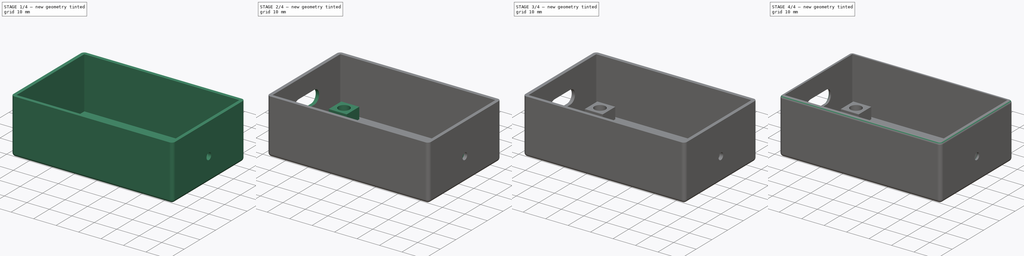
[diagram: build sequence overview — one tinted view per stage of 4, left to right]
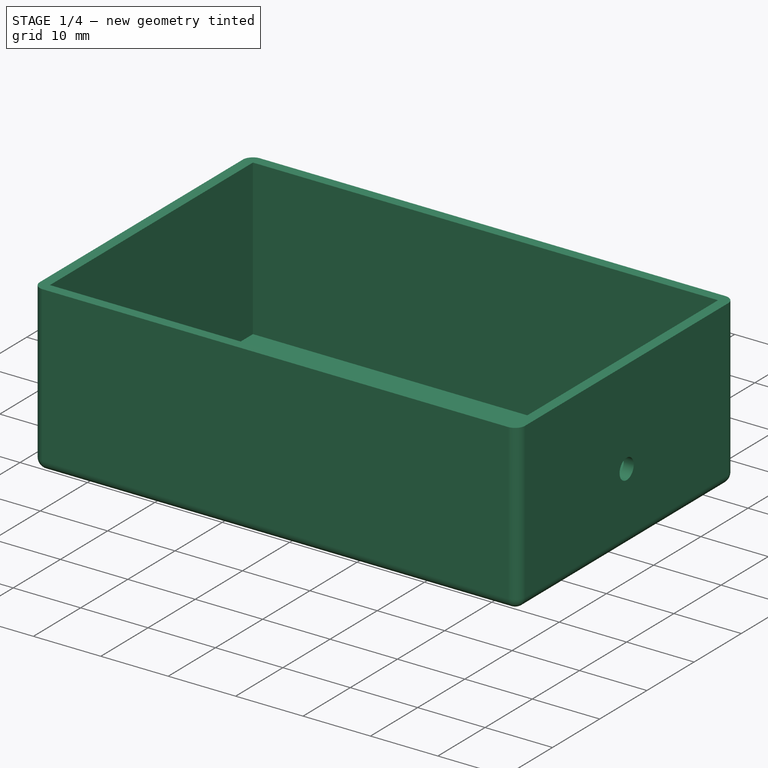
[diagram: stage 1 of 4 — iso view after this stage's code; geometry added in this stage tinted green]
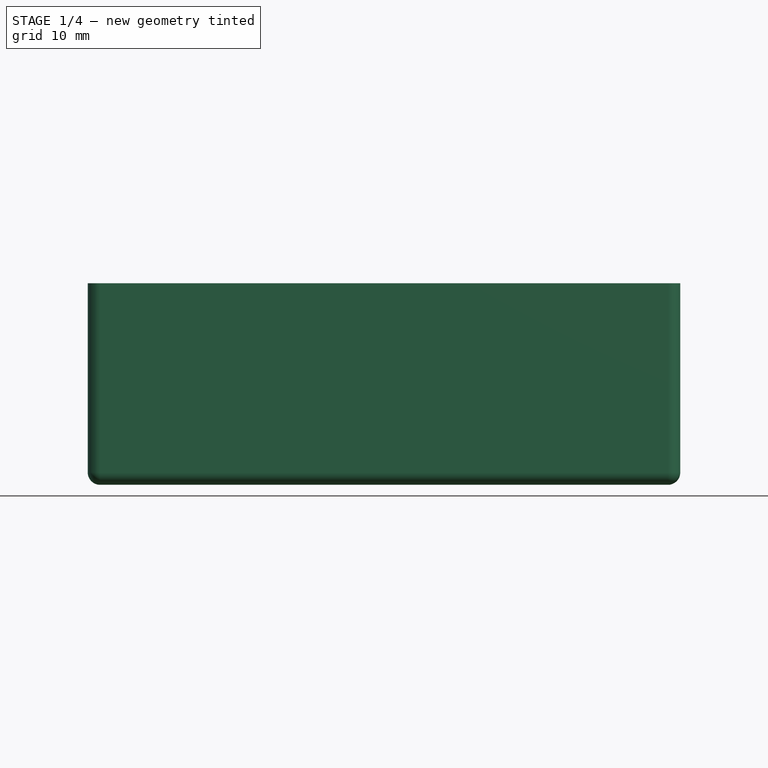
[diagram: stage 1 of 4 — front view after this stage's code; geometry added in this stage tinted green]
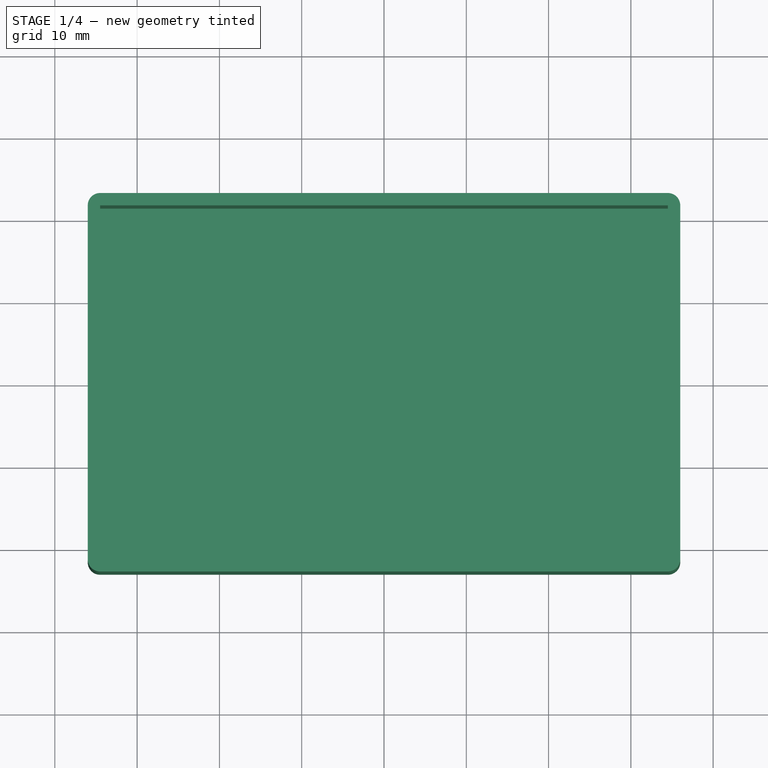
[diagram: stage 1 of 4 — top view after this stage's code; geometry added in this stage tinted green]
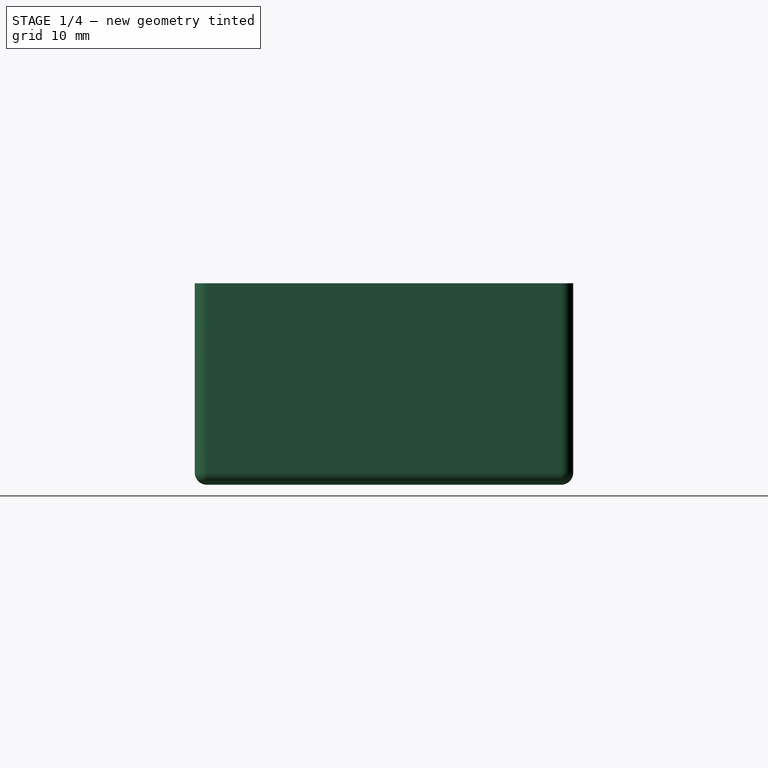
[diagram: stage 1 of 4 — right view after this stage's code; geometry added in this stage tinted green]
FCSTD DOCUMENT  (FreeCAD 0.19R23141 (Git))
Label: Case Bottom Backup
License: All rights reserved
LicenseURL: http://en.wikipedia.org/wiki/All_rights_reserved
objects: Sketcher::SketchObject×9, PartDesign::Pocket×6, PartDesign::Pad×2, PartDesign::Fillet×2, PartDesign::Thickness×1, PartDesign::Hole×1, PartDesign::Body×1
note: 34 computed .brp shape members not serialized (recipe doc carries the construction recipe); baked Part::Feature solids carry a one-line shape summary decoded from their .brp

FEATURE [Sketcher::SketchObject] Sketch  label="Main Body"
  MapMode = 5
  Support = -> [XY_Plane]
  sketch-geometry (4):
    g0: LineSegment StartX=-34.5 StartY=21.5 StartZ=0 EndX=34.5 EndY=21.5 EndZ=0
    g1: LineSegment StartX=34.5 StartY=21.5 StartZ=0 EndX=34.5 EndY=-21.5 EndZ=0
    g2: LineSegment StartX=34.5 StartY=-21.5 StartZ=0 EndX=-34.5 EndY=-21.5 EndZ=0
    g3: LineSegment StartX=-34.5 StartY=-21.5 StartZ=0 EndX=-34.5 EndY=21.5 EndZ=0
  constraints (10):
    c: Coincident(g0,g1)
    c: Coincident(g1,g2)
    c: Coincident(g2,g3)
    c: Coincident(g3,g0)
    c: Horizontal(g2)
    c: Vertical(g3)
    c: DistanceX(g0,g0) = 69
    c: DistanceY(g1,g1) = 43
    c: Symmetric(g0,g1,g-1)
    c: Symmetric(g0,g0,g-2)
FEATURE [PartDesign::Pad] Pad
  AllowMultiFace = false
  Direction = (1,1,1)
  Length = 23
  Length2 = 100
  Profile = -> Sketch
  Type = 0
FEATURE [PartDesign::Thickness] Thickness  label="Bottom?"
  Base = -> Pad [Face6]
  BaseFeature = -> Pad
  Intersection = false
  Join = 0
  Mode = 0
  SupportTransform = false
  Value = 1.5
FEATURE [Sketcher::SketchObject] Sketch001  label="Round Hole"
  ExternalGeometry = -> [Thickness]
  MapMode = 5
  Placement = pos=(36,0,0) rot=(0.57735,0.57735,0.57735;2.0944rad)
  Support = -> [Thickness]
  sketch-geometry (1):
    g0: Circle CenterX=-2e-16 CenterY=9 CenterZ=0 NormalX=0 NormalY=0 NormalZ=1 AngleXU=0 Radius=2.5
  constraints (3):
    c: Diameter(g0) = 5
    c: DistanceX(g-3,g0) = 23
    c: DistanceY(g-1,g0) = 9
FEATURE [PartDesign::Hole] Hole
  AllowMultiFace = false
  BaseFeature = -> Thickness
  Depth = 3
  DepthType = 0
  Diameter = 3
  DrillPoint = 1
  DrillPointAngle = 118
  HoleCutCountersinkAngle = 90
  HoleCutDepth = 0
  HoleCutDiameter = 0
  HoleCutType = 0
  ModelActualThread = false
  Profile = -> Sketch001
  Tapered = false
  TaperedAngle = 90
  ThreadAngle = 0
  ThreadClass = 0
  ThreadCutOffInner = 0
  ThreadCutOffOuter = 0
  ThreadDirection = 0
  ThreadFit = 0
  ThreadPitch = 0
  ThreadSize = 0
  ThreadType = 0
  Threaded = false
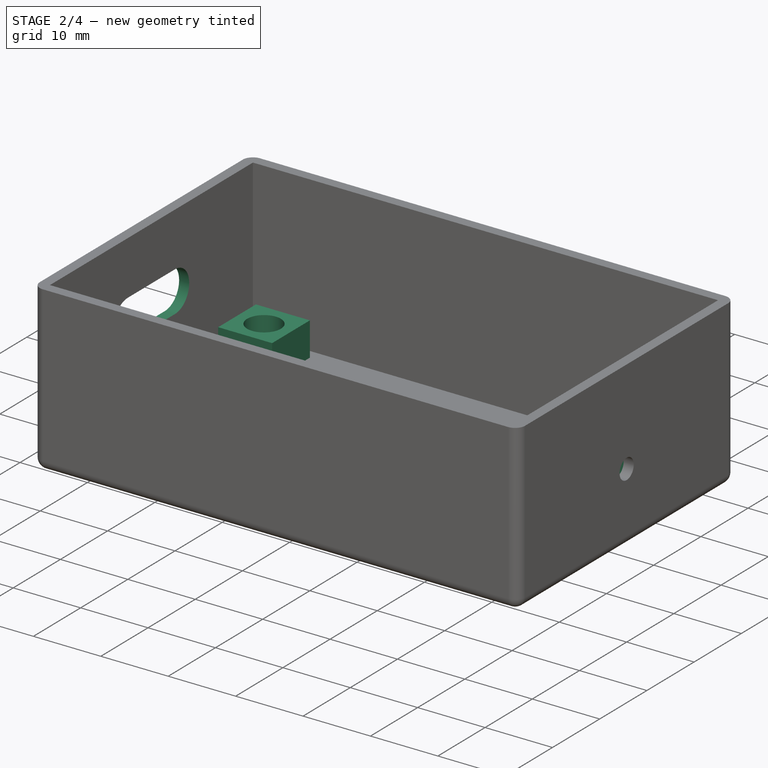
[diagram: stage 2 of 4 — iso view after this stage's code; geometry added in this stage tinted green]
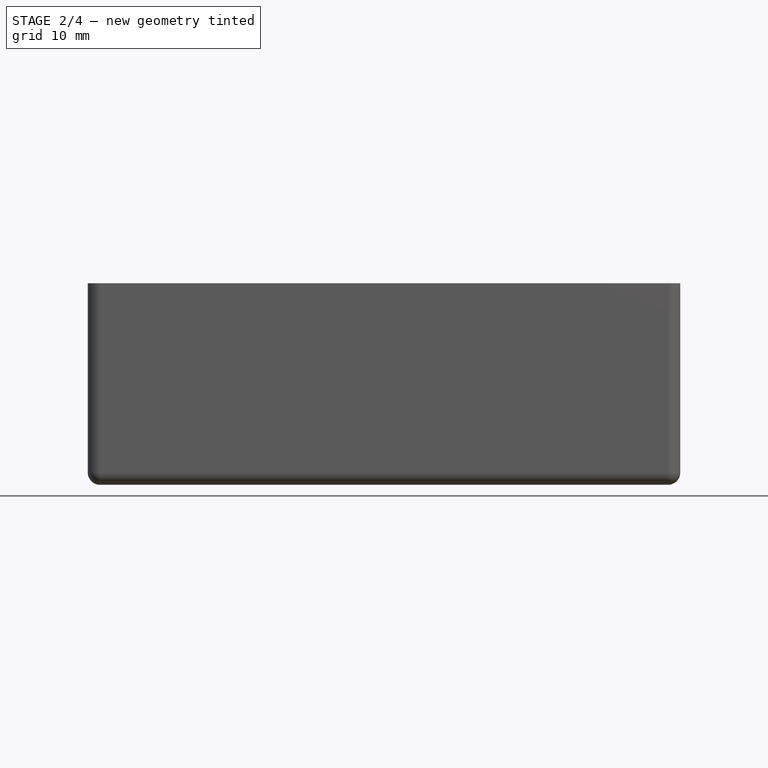
[diagram: stage 2 of 4 — front view after this stage's code; geometry added in this stage tinted green]
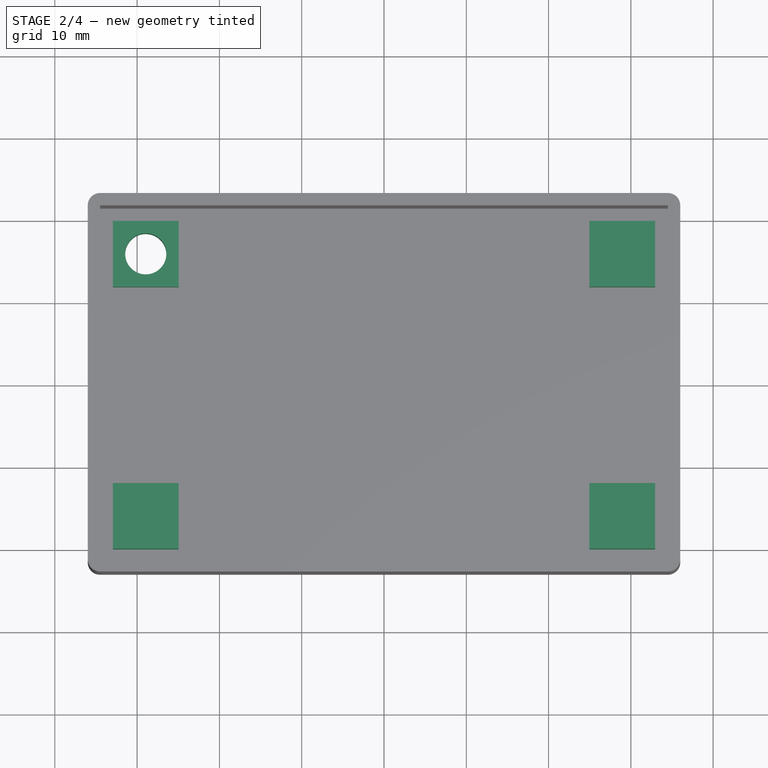
[diagram: stage 2 of 4 — top view after this stage's code; geometry added in this stage tinted green]
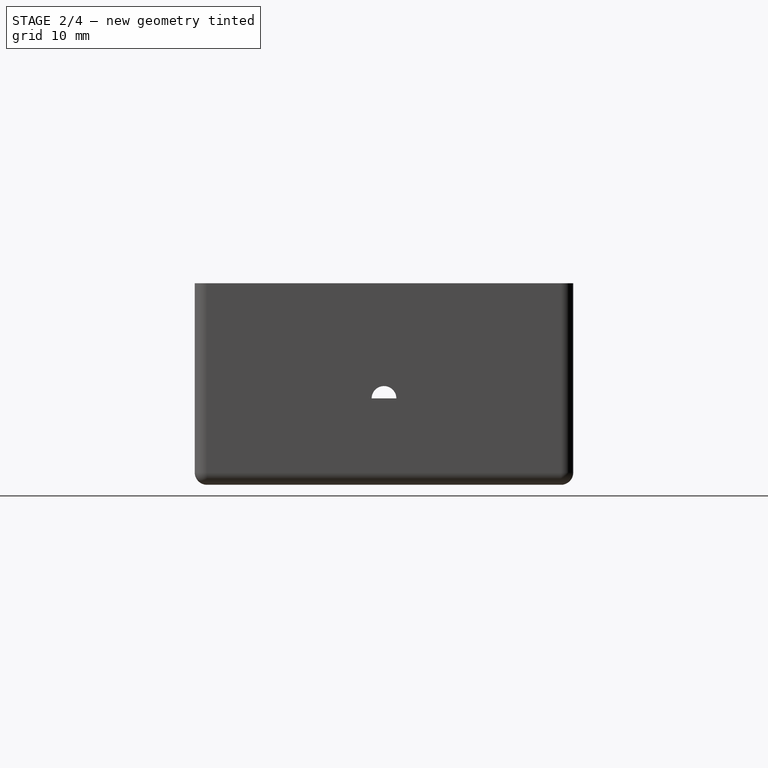
[diagram: stage 2 of 4 — right view after this stage's code; geometry added in this stage tinted green]
FEATURE [Sketcher::SketchObject] Sketch002  label="Oval Hole"
  ExternalGeometry = -> [Hole]
  MapMode = 5
  Placement = pos=(-36,0,0) rot=(0.57735,-0.57735,-0.57735;2.0944rad)
  Support = -> [Hole]
  sketch-geometry (4):
    g0: ArcOfCircle CenterX=-5 CenterY=12 CenterZ=0 NormalX=0 NormalY=0 NormalZ=1 AngleXU=0 Radius=3 StartAngle=1.5708 EndAngle=4.71239
    g1: ArcOfCircle CenterX=5 CenterY=12 CenterZ=0 NormalX=0 NormalY=0 NormalZ=1 AngleXU=0 Radius=3 StartAngle=4.71239 EndAngle=7.85398
    g2: LineSegment StartX=-5 StartY=9 StartZ=0 EndX=5 EndY=9 EndZ=0
    g3: LineSegment StartX=-5 StartY=15 StartZ=0 EndX=5 EndY=15 EndZ=0
  constraints (11):
    c: Tangent(g0,g3)
    c: Tangent(g0,g2)
    c: Tangent(g2,g1)
    c: Tangent(g3,g1)
    c: Horizontal(g2)
    c: Equal(g0,g1)
    c: DistanceX(g0,g1) = 10
    c: DistanceY(g1,g1) = 6
    c: DistanceX(g-3,g0) = 18
    c: DistanceX(g-3,g-4) = 46
    c: DistanceY(g-3,g0) = 9
FEATURE [PartDesign::Pocket] Pocket  label="Oval Pocket"
  AllowMultiFace = false
  BaseFeature = -> Hole
  Length = 5
  Length2 = 100
  Profile = -> Sketch002
  Type = 0
FEATURE [Sketcher::SketchObject] Sketch003  label="Stand Offs (4)"
  ExternalGeometry = -> [Pocket]
  MapMode = 5
  Support = -> [Pocket]
  sketch-geometry (16):
    g0: LineSegment StartX=-32.95 StartY=19.925 StartZ=0 EndX=-24.95 EndY=19.925 EndZ=0
    g1: LineSegment StartX=-24.95 StartY=19.925 StartZ=0 EndX=-24.95 EndY=11.925 EndZ=0
    g2: LineSegment StartX=-24.95 StartY=11.925 StartZ=0 EndX=-32.95 EndY=11.925 EndZ=0
    g3: LineSegment StartX=-32.95 StartY=11.925 StartZ=0 EndX=-32.95 EndY=19.925 EndZ=0
    g4: LineSegment StartX=24.95 StartY=19.925 StartZ=0 EndX=32.95 EndY=19.925 EndZ=0
    g5: LineSegment StartX=32.95 StartY=19.925 StartZ=0 EndX=32.95 EndY=11.925 EndZ=0
    g6: LineSegment StartX=32.95 StartY=11.925 StartZ=0 EndX=24.95 EndY=11.925 EndZ=0
    g7: LineSegment StartX=24.95 StartY=11.925 StartZ=0 EndX=24.95 EndY=19.925 EndZ=0
    g8: LineSegment StartX=-32.95 StartY=-11.925 StartZ=0 EndX=-24.95 EndY=-11.925 EndZ=0
    g9: LineSegment StartX=-24.95 StartY=-11.925 StartZ=0 EndX=-24.95 EndY=-19.925 EndZ=0
    g10: LineSegment StartX=-24.95 StartY=-19.925 StartZ=0 EndX=-32.95 EndY=-19.925 EndZ=0
    g11: LineSegment StartX=-32.95 StartY=-19.925 StartZ=0 EndX=-32.95 EndY=-11.925 EndZ=0
    g12: LineSegment StartX=24.95 StartY=-11.925 StartZ=0 EndX=32.95 EndY=-11.925 EndZ=0
    g13: LineSegment StartX=32.95 StartY=-11.925 StartZ=0 EndX=32.95 EndY=-19.925 EndZ=0
    g14: LineSegment StartX=32.95 StartY=-19.925 StartZ=0 EndX=24.95 EndY=-19.925 EndZ=0
    g15: LineSegment StartX=24.95 StartY=-19.925 StartZ=0 EndX=24.95 EndY=-11.925 EndZ=0
  constraints (56):
    c: Coincident(g0,g1)
    c: Coincident(g1,g2)
    c: Coincident(g2,g3)
    c: Coincident(g3,g0)
    c: Horizontal(g0)
    c: Horizontal(g2)
    c: Vertical(g1)
    c: Vertical(g3)
    c: DistanceY(g1,g0) = 8
    c: DistanceX(g2,g2) = 8
    c: Coincident(g4,g5)
    c: Coincident(g5,g6)
    c: Coincident(g6,g7)
    c: Coincident(g7,g4)
    c: Horizontal(g4)
    c: Horizontal(g6)
    c: Vertical(g5)
    c: Vertical(g7)
    c: DistanceY(g5,g4) = 8
    c: Equal(g2,g6) = 7.5
    c: Coincident(g8,g9)
    c: Coincident(g9,g10)
    c: Coincident(g10,g11)
    c: Coincident(g11,g8)
    c: Horizontal(g8)
    c: Horizontal(g10)
    c: Vertical(g9)
    c: Vertical(g11)
    c: DistanceY(g9,g8) = 8
    c: Equal(g2,g10) = 7.5
    c: Coincident(g12,g13)
    c: Coincident(g13,g14)
    c: Coincident(g14,g15)
    c: Coincident(g15,g12)
    c: Horizontal(g12)
    c: Horizontal(g14)
    c: Vertical(g13)
    c: Vertical(g15)
    c: DistanceY(g13,g12) = 8
    c: Equal(g2,g14) = 7.5
    c: DistanceX(g0,g4) = 57.9
    c: DistanceY(g10,g2) = 31.85
    c: DistanceY(g13,g5) = 31.85
    c: DistanceX(g8,g12) = 57.9
    c: DistanceX(g-5) = 36
    c: DistanceX(g-4,g10) = 3.05
    c: DistanceY(g-6,g13) = 3.075
    c: DistanceY(g0,g-3) = 3.075
    c: DistanceX(g-4,g0) = 3.05
    c: DistanceX(g-5) = 36
    c: DistanceX(g-4,g-3) = 1.5
    c: DistanceX(g-4,g-3) = 1.5
    c: DistanceX(g-4,g-3) = 1.5
    c: DistanceX(g-4,g-6) = 1.5
    c: DistanceY(g-4,g-4) = 43
    c: DistanceX(g-6,g-6) = 69
FEATURE [PartDesign::Pad] Pad001  label="Standoff Pad"
  AllowMultiFace = false
  BaseFeature = -> Pocket
  Direction = (1,1,1)
  Length = 5
  Length2 = 100
  Profile = -> Sketch003
  Type = 0
FEATURE [Sketcher::SketchObject] Sketch007
  ExternalGeometry = -> [Pad001]
  MapMode = 5
  Placement = pos=(0,0,5) rot=(0,0,1;0rad)
  Support = -> [Pad001]
  sketch-geometry (1):
    g0: Circle CenterX=-28.95 CenterY=15.925 CenterZ=0 NormalX=0 NormalY=0 NormalZ=1 AngleXU=0 Radius=2.5
  constraints (3):
    c: Diameter(g0) = 5
    c: DistanceY(g-4,g0) = 4
    c: DistanceX(g-3,g0) = 4
FEATURE [PartDesign::Pocket] Pocket003  label="UL Bolt Hole"
  BaseFeature = -> Pad001
  Length = 7
  Length2 = 100
  Profile = -> Sketch007
  Type = 0
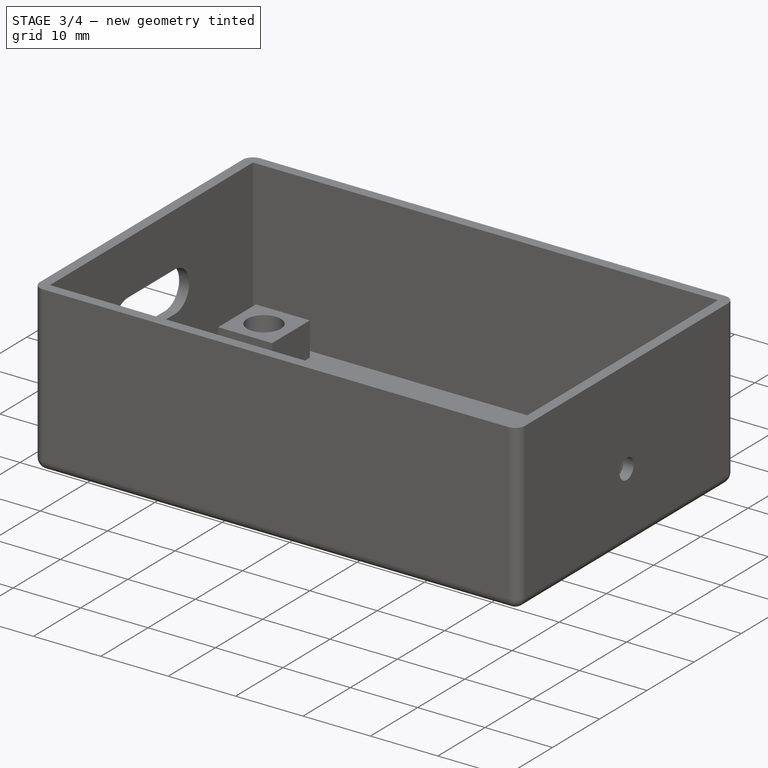
[diagram: stage 3 of 4 — iso view after this stage's code; geometry added in this stage tinted green]
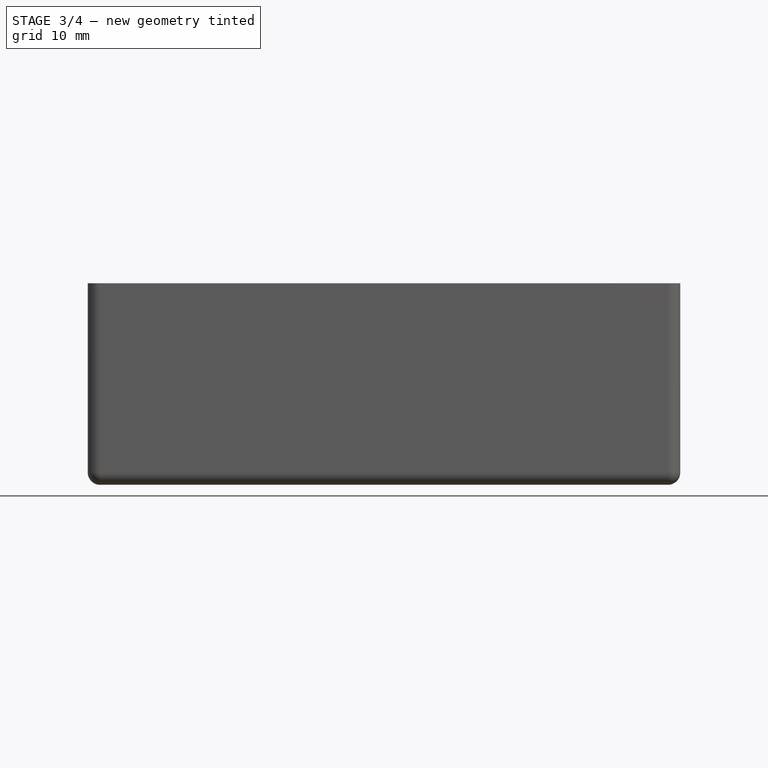
[diagram: stage 3 of 4 — front view after this stage's code; geometry added in this stage tinted green]
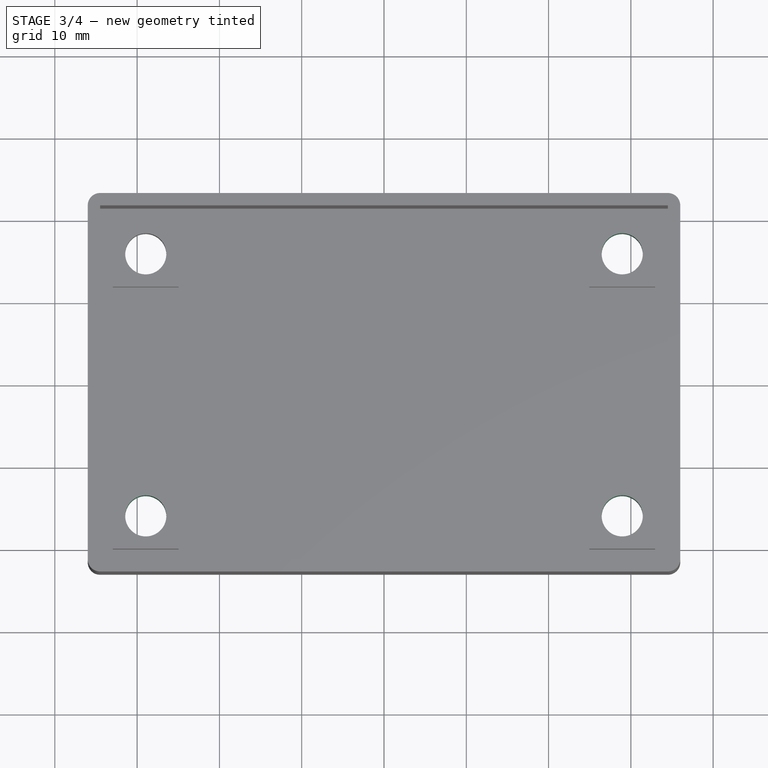
[diagram: stage 3 of 4 — top view after this stage's code; geometry added in this stage tinted green]
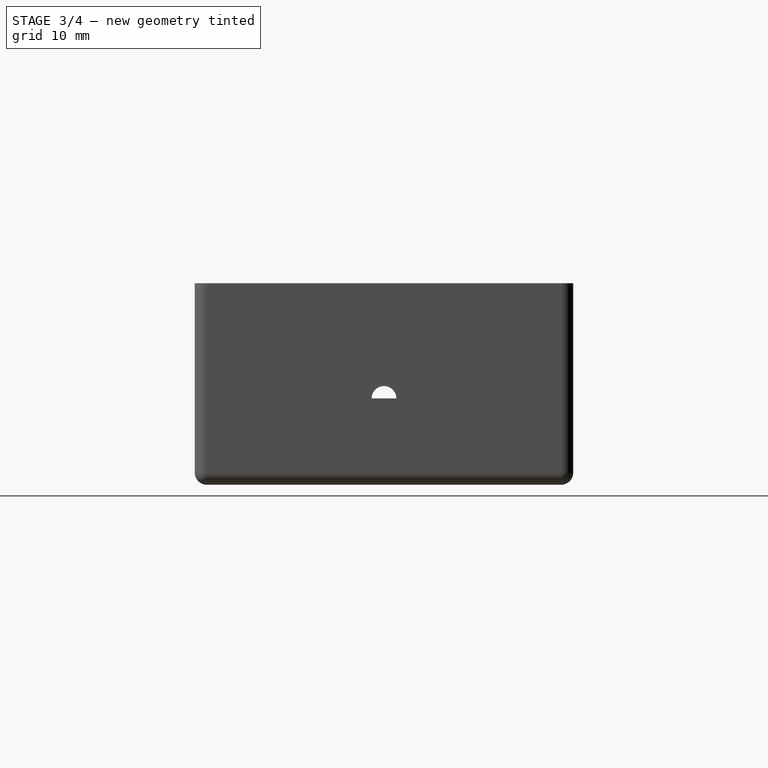
[diagram: stage 3 of 4 — right view after this stage's code; geometry added in this stage tinted green]
FEATURE [Sketcher::SketchObject] Sketch008
  ExternalGeometry = -> [Pocket003]
  MapMode = 5
  Placement = pos=(0,0,5) rot=(0,0,1;0rad)
  Support = -> [Pocket003]
  sketch-geometry (1):
    g0: Circle CenterX=28.95 CenterY=15.925 CenterZ=0 NormalX=0 NormalY=0 NormalZ=1 AngleXU=0 Radius=2.5
  constraints (3):
    c: Diameter(g0) = 5
    c: DistanceX(g0,g-4) = 4
    c: DistanceY(g-4,g0) = 4
FEATURE [PartDesign::Pocket] Pocket004  label="UR Bolt Hole"
  BaseFeature = -> Pocket003
  Length = 7
  Length2 = 100
  Profile = -> Sketch008
  Type = 0
FEATURE [Sketcher::SketchObject] Sketch009
  ExternalGeometry = -> [Pocket004]
  MapMode = 5
  Placement = pos=(0,0,5) rot=(0,0,1;0rad)
  Support = -> [Pocket004]
  sketch-geometry (1):
    g0: Circle CenterX=-28.95 CenterY=-15.925 CenterZ=0 NormalX=0 NormalY=0 NormalZ=1 AngleXU=0 Radius=2.5
  constraints (3):
    c: Diameter(g0) = 5
    c: DistanceX(g0,g-4) = 4
    c: DistanceY(g-3,g0) = 4
FEATURE [PartDesign::Pocket] Pocket005  label="LL Bolt Hole"
  BaseFeature = -> Pocket004
  Length = 7
  Length2 = 100
  Profile = -> Sketch009
  Type = 0
FEATURE [Sketcher::SketchObject] Sketch010
  ExternalGeometry = -> [Pocket005]
  MapMode = 5
  Placement = pos=(0,0,5) rot=(0,0,1;0rad)
  Support = -> [Pocket005]
  sketch-geometry (1):
    g0: Circle CenterX=28.95 CenterY=-15.925 CenterZ=0 NormalX=0 NormalY=0 NormalZ=1 AngleXU=0 Radius=2.5
  constraints (3):
    c: Diameter(g0) = 5
    c: DistanceX(g0,g-3) = 4
    c: DistanceY(g-4,g0) = 4
FEATURE [PartDesign::Pocket] Pocket006  label="LR Bolt Hole"
  BaseFeature = -> Pocket005
  Length = 7
  Length2 = 100
  Profile = -> Sketch010
  Type = 0
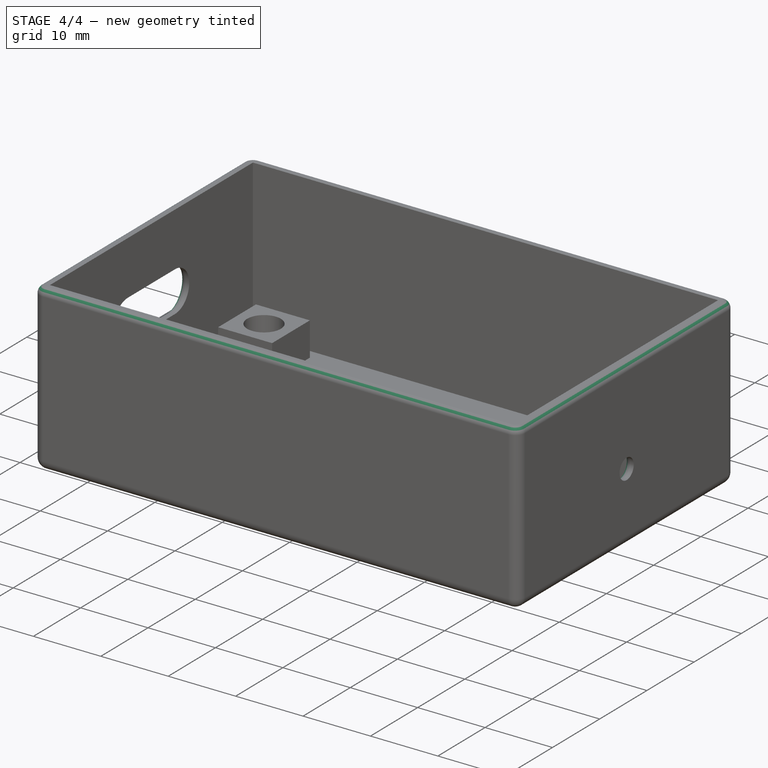
[diagram: stage 4 of 4 — iso view after this stage's code; geometry added in this stage tinted green]
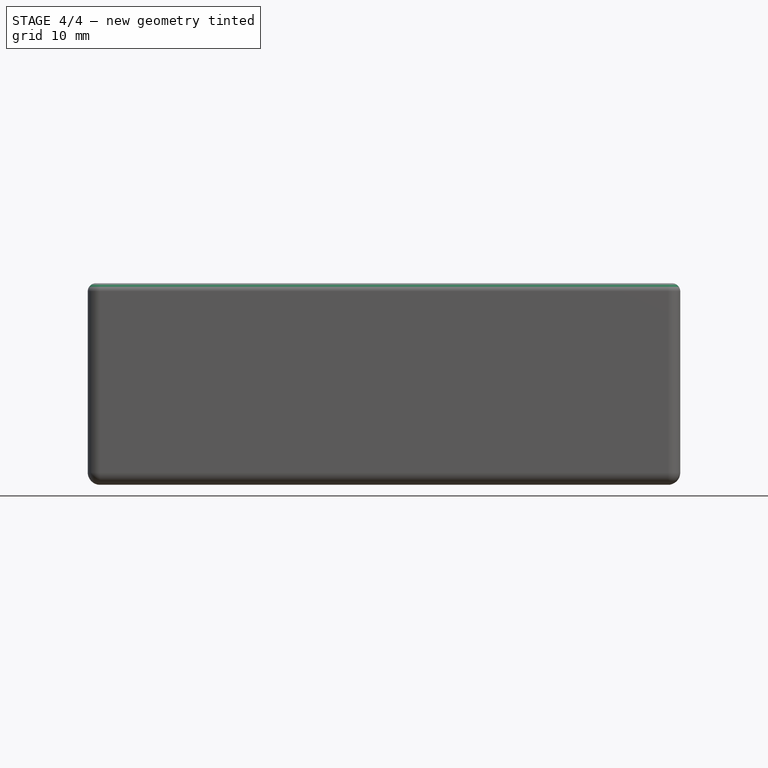
[diagram: stage 4 of 4 — front view after this stage's code; geometry added in this stage tinted green]
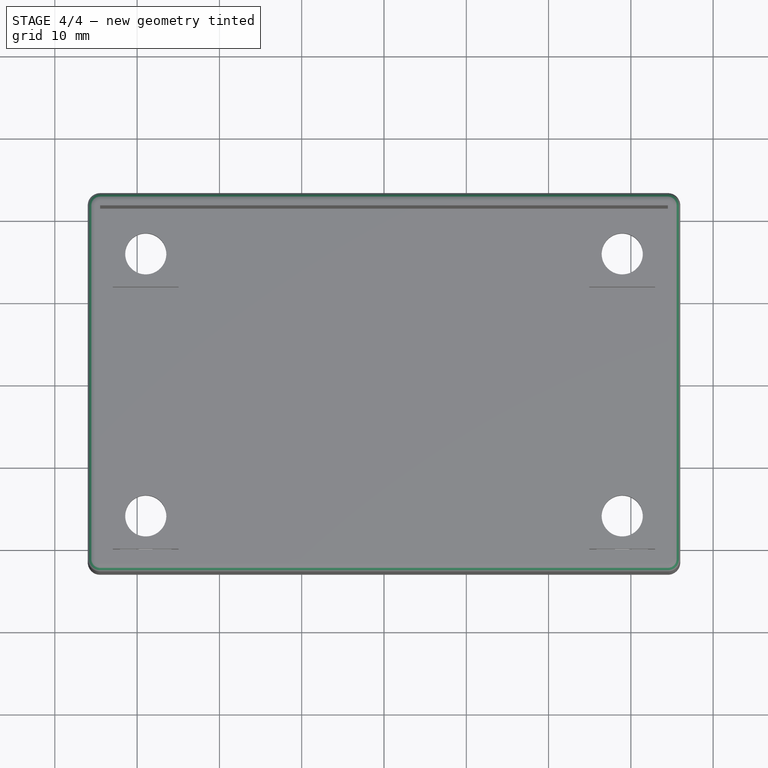
[diagram: stage 4 of 4 — top view after this stage's code; geometry added in this stage tinted green]
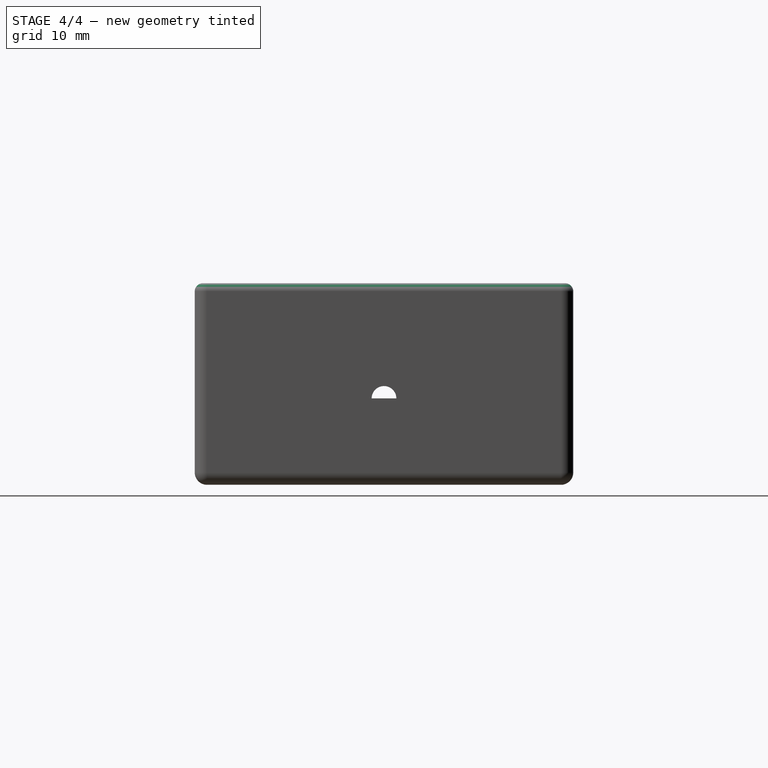
[diagram: stage 4 of 4 — right view after this stage's code; geometry added in this stage tinted green]
FEATURE [Sketcher::SketchObject] Sketch011
  ExternalGeometry = -> [Pocket006]
  MapMode = 5
  Placement = pos=(0,0,-1.5) rot=(1,0,0;3.14159rad)
  Support = -> [Pocket006]
  sketch-geometry (24):
    g0: LineSegment StartX=-25.1458 StartY=17.1611 StartZ=0 EndX=-28.95 EndY=19.925 EndZ=0
    g1: LineSegment StartX=-28.95 StartY=19.925 StartZ=0 EndX=-32.7542 EndY=17.1611 EndZ=0
    g2: LineSegment StartX=-32.7542 StartY=17.1611 StartZ=0 EndX=-31.3011 EndY=12.6889 EndZ=0
    g3: LineSegment StartX=-31.3011 StartY=12.6889 StartZ=0 EndX=-26.5989 EndY=12.6889 EndZ=0
    g4: LineSegment StartX=-26.5989 StartY=12.6889 StartZ=0 EndX=-25.1458 EndY=17.1611 EndZ=0
    g5: Circle [constr] CenterX=-28.95 CenterY=15.925 CenterZ=0 NormalX=0 NormalY=0 NormalZ=1 AngleXU=0 Radius=4
    g6: LineSegment StartX=26.5989 StartY=12.6889 StartZ=0 EndX=31.3011 EndY=12.6889 EndZ=0
    g7: LineSegment StartX=31.3011 StartY=12.6889 StartZ=0 EndX=32.7542 EndY=17.1611 EndZ=0
    g8: LineSegment StartX=32.7542 StartY=17.1611 StartZ=0 EndX=28.95 EndY=19.925 EndZ=0
    g9: LineSegment StartX=28.95 StartY=19.925 StartZ=0 EndX=25.1458 EndY=17.1611 EndZ=0
    g10: LineSegment StartX=25.1458 StartY=17.1611 StartZ=0 EndX=26.5989 EndY=12.6889 EndZ=0
    g11: Circle [constr] CenterX=28.95 CenterY=15.925 CenterZ=0 NormalX=0 NormalY=0 NormalZ=1 AngleXU=0 Radius=4
    g12: LineSegment StartX=-26.5989 StartY=-12.6889 StartZ=0 EndX=-31.3011 EndY=-12.6889 EndZ=0
    g13: LineSegment StartX=-31.3011 StartY=-12.6889 StartZ=0 EndX=-32.7542 EndY=-17.1611 EndZ=0
    g14: LineSegment StartX=-32.7542 StartY=-17.1611 StartZ=0 EndX=-28.95 EndY=-19.925 EndZ=0
    g15: LineSegment StartX=-28.95 StartY=-19.925 StartZ=0 EndX=-25.1458 EndY=-17.1611 EndZ=0
    g16: LineSegment StartX=-25.1458 StartY=-17.1611 StartZ=0 EndX=-26.5989 EndY=-12.6889 EndZ=0
    g17: Circle [constr] CenterX=-28.95 CenterY=-15.925 CenterZ=0 NormalX=0 NormalY=0 NormalZ=1 AngleXU=0 Radius=4
    g18: LineSegment StartX=26.5989 StartY=-12.6889 StartZ=0 EndX=25.1458 EndY=-17.1611 EndZ=0
    g19: LineSegment StartX=25.1458 StartY=-17.1611 StartZ=0 EndX=28.95 EndY=-19.925 EndZ=0
    g20: LineSegment StartX=28.95 StartY=-19.925 StartZ=0 EndX=32.7542 EndY=-17.1611 EndZ=0
    g21: LineSegment StartX=32.7542 StartY=-17.1611 StartZ=0 EndX=31.3011 EndY=-12.6889 EndZ=0
    g22: LineSegment StartX=31.3011 StartY=-12.6889 StartZ=0 EndX=26.5989 EndY=-12.6889 EndZ=0
    g23: Circle [constr] CenterX=28.95 CenterY=-15.925 CenterZ=0 NormalX=0 NormalY=0 NormalZ=1 AngleXU=0 Radius=4
  constraints (56):
    c: Coincident(g0,g1)
    c: Coincident(g1,g2)
    c: Coincident(g2,g3)
    c: Coincident(g3,g4)
    c: Coincident(g4,g0)
    c: Equal(g0, g1-g4) x4
    c: PointOnObject(g0,g5)
    c: PointOnObject(g1,g5)
    c: PointOnObject(g2,g5)
    c: PointOnObject(g3,g5)
    c: PointOnObject(g4,g5)
    c: Diameter(g5) = 8
    c: Coincident(g-4,g5)
    c: Parallel(g-1,g3)
    c: Coincident(g6,g7)
    c: Coincident(g7,g8)
    c: Coincident(g8,g9)
    c: Coincident(g9,g10)
    c: Coincident(g10,g6)
    c: Equal(g6, g7-g10) x4
    c: PointOnObject(g6,g11)
    c: PointOnObject(g7,g11)
    c: PointOnObject(g8,g11)
    c: PointOnObject(g9,g11)
    c: PointOnObject(g10,g11)
    c: Coincident(g11,g-5)
    c: Diameter(g11) = 8
    c: Coincident(g12,g13)
    c: Coincident(g13,g14)
    c: Coincident(g14,g15)
    c: Coincident(g15,g16)
    c: Coincident(g16,g12)
    c: Equal(g12, g13-g16) x4
    c: PointOnObject(g12,g17)
    c: PointOnObject(g13,g17)
    c: PointOnObject(g14,g17)
    c: PointOnObject(g15,g17)
    c: PointOnObject(g16,g17)
    c: Coincident(g17,g-3)
    c: Diameter(g17) = 8
    c: Coincident(g18,g19)
    c: Coincident(g19,g20)
    c: Coincident(g20,g21)
    c: Coincident(g21,g22)
    c: Coincident(g22,g18)
    c: Equal(g18, g19-g22) x4
    c: PointOnObject(g18,g23)
    c: PointOnObject(g19,g23)
    c: PointOnObject(g20,g23)
    c: PointOnObject(g21,g23)
    c: PointOnObject(g22,g23)
    c: Coincident(g23,g-6)
    c: Diameter(g23) = 8
    c: Parallel(g-1,g6)
    c: Parallel(g22,g-1)
    c: Parallel(g-1,g12)
FEATURE [PartDesign::Pocket] Pocket007  label="Nut Holes"
  BaseFeature = -> Pocket006
  Length = 3
  Length2 = 100
  Profile = -> Sketch011
  Type = 0
FEATURE [PartDesign::Fillet] Fillet
  Base = -> Pocket007 [Edge15]
  BaseFeature = -> Pocket007
  Radius = 1
  SupportTransform = false
FEATURE [PartDesign::Fillet] Fillet001
  Base = -> Fillet [Face26]
  BaseFeature = -> Fillet
  Radius = 1
  SupportTransform = false
FEATURE [PartDesign::Body] Body
  Group = -> [Sketch,Pad,Thickness,Sketch001,Hole,Sketch002,Pocket,Sketch003,Pad001,Sketch007,Pocket003,Sketch008,Pocket004,Sketch009,Pocket005,Sketch010,Pocket006,Sketch011,Pocket007,Fillet,Fillet001]
  Origin = -> Origin
  Tip = -> Fillet001
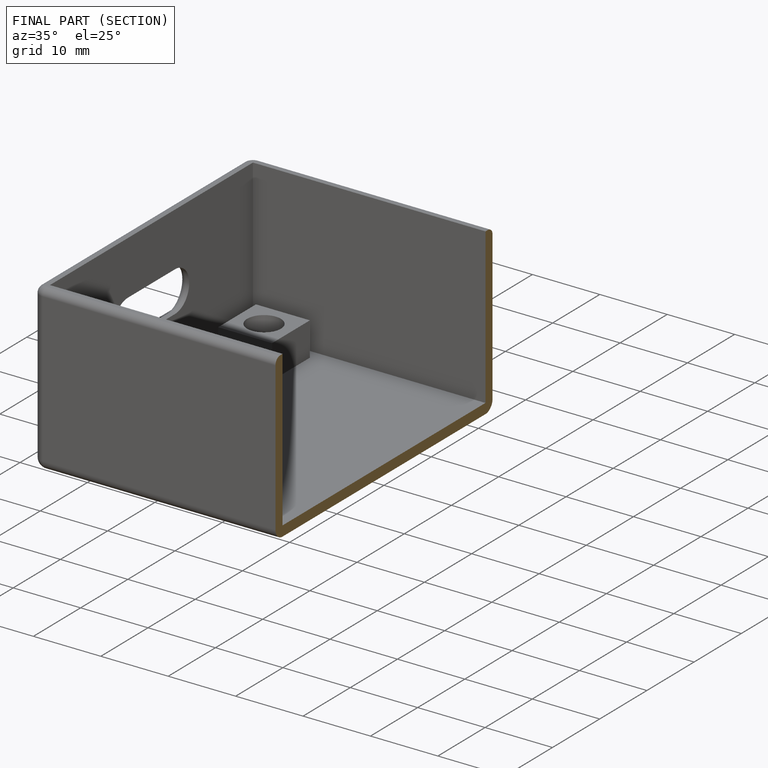
[diagram: finished part — half-section view (interior)]
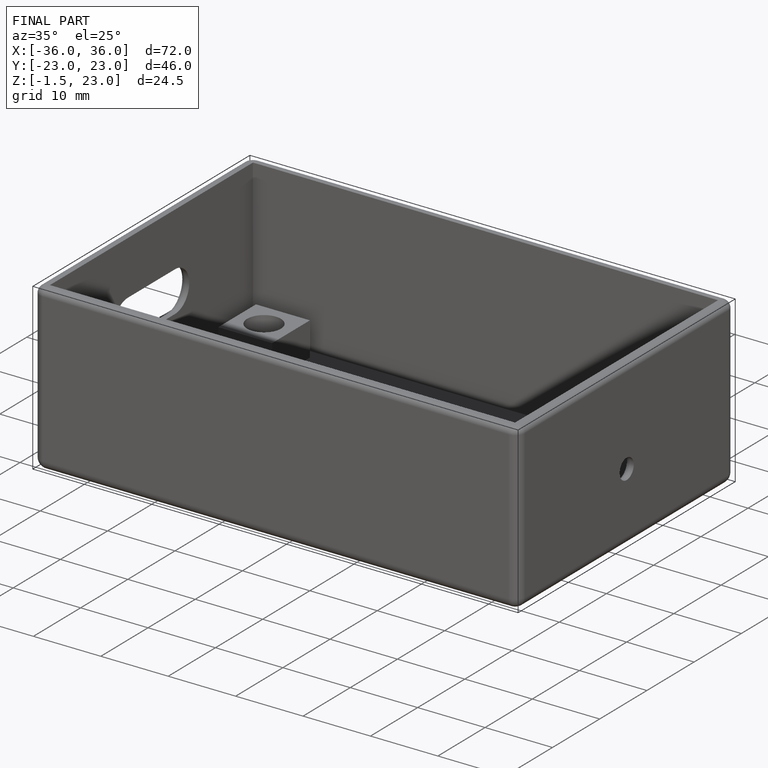
[diagram: finished part — iso view with bounding-box wireframe]
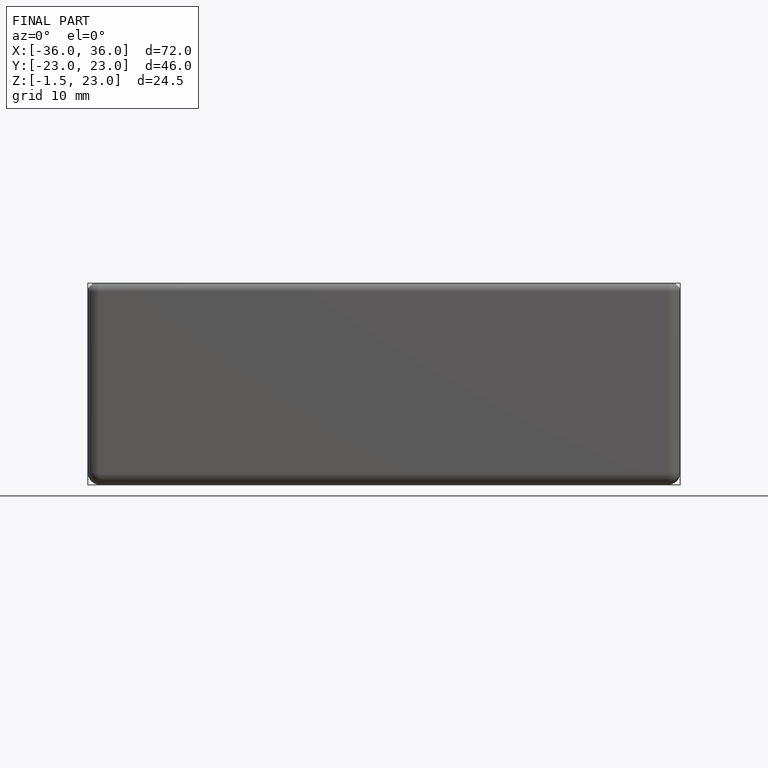
[diagram: finished part — front view with bounding-box wireframe]
